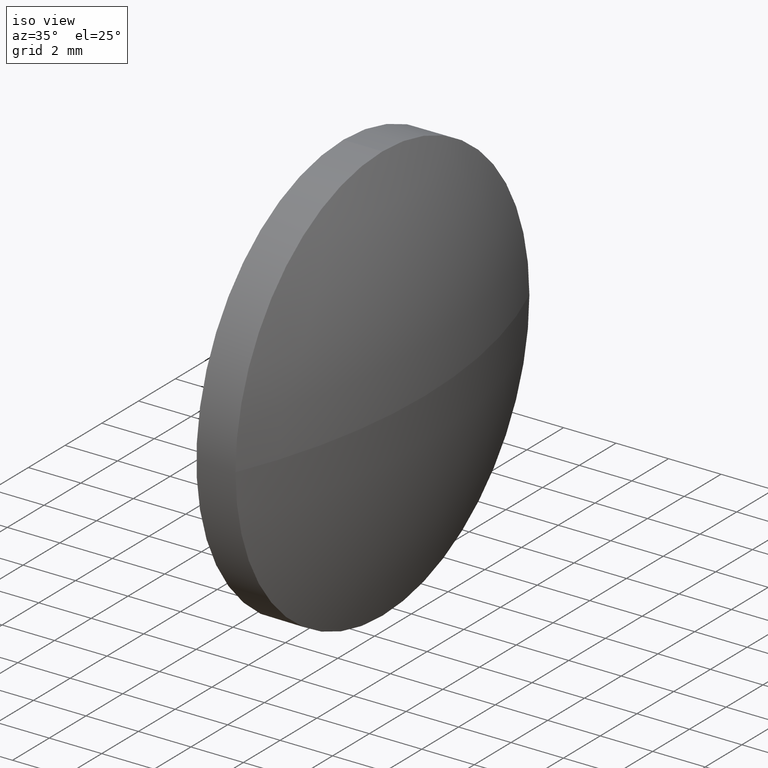
[diagram: clean part render]
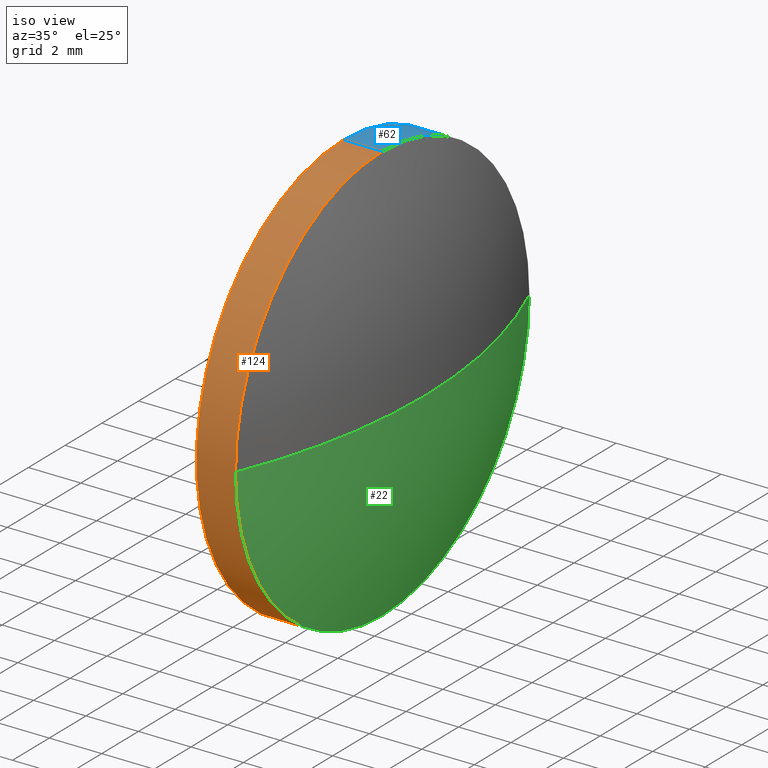
[diagram: same view with three faces highlighted in distinct colors, each labeled with its STEP entity id]
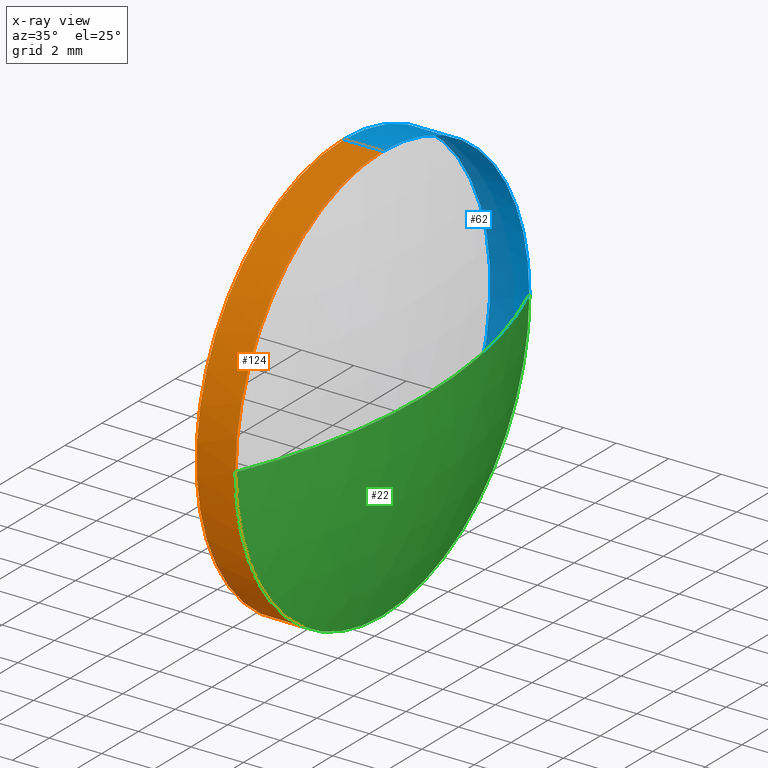
[diagram: x-ray of the same camera — body ghosted, the three highlighted faces saturated]
A machine part, iso view with three faces highlighted in distinct colors.
The next image is the same camera in x-ray (body ghosted, the three faces saturated) — at least one of them is partly hidden behind the body in this view.
Their STEP definitions:

[orange] entity #124 — the highlighted cylindrical surface (partial cylindrical patch) has radius 8 mm, axis along (-1, -0, -0).
#5 = AXIS2_PLACEMENT_3D ( 'NONE', #98, #152, #180 ) ;
#9 = EDGE_CURVE ( 'NONE', #159, #77, #82, .T. ) ;
#13 = VECTOR ( 'NONE', #148, 1000.000000000000000 ) ;
#16 = CARTESIAN_POINT ( 'NONE',  ( 440.2712780236154800, 0.7681557501930741400, 0.0000000000000000000 ) ) ;
#19 = FACE_OUTER_BOUND ( 'NONE', #173, .T. ) ;
#24 = VERTEX_POINT ( 'NONE', #126 ) ;
#25 = DIRECTION ( 'NONE',  ( -1.000000000000000000, -0.0000000000000000000, -0.0000000000000000000 ) ) ;
#37 = VERTEX_POINT ( 'NONE', #106 ) ;
#40 = CARTESIAN_POINT ( 'NONE',  ( 441.7612780236154900, -7.231844249806953500, -9.797174393178815800E-016 ) ) ;
#42 = DIRECTION ( 'NONE',  ( 0.0000000000000000000, 0.0000000000000000000, 1.000000000000000000 ) ) ;
#44 = EDGE_CURVE ( 'NONE', #37, #159, #185, .T. ) ;
#45 = EDGE_CURVE ( 'NONE', #37, #65, #51, .T. ) ;
#47 = ORIENTED_EDGE ( 'NONE', *, *, #44, .T. ) ;
#48 = AXIS2_PLACEMENT_3D ( 'NONE', #81, #80, #163 ) ;
#51 = LINE ( 'NONE', #123, #160 ) ;
#52 = ORIENTED_EDGE ( 'NONE', *, *, #102, .T. ) ;
#61 = ORIENTED_EDGE ( 'NONE', *, *, #67, .F. ) ;
#65 = VERTEX_POINT ( 'NONE', #149 ) ;
#67 = EDGE_CURVE ( 'NONE', #65, #24, #92, .T. ) ;
#68 = DIRECTION ( 'NONE',  ( -1.000000000000000000, -0.0000000000000000000, -0.0000000000000000000 ) ) ;
#70 = DIRECTION ( 'NONE',  ( 0.0000000000000000000, 0.0000000000000000000, 1.000000000000000000 ) ) ;
#73 = AXIS2_PLACEMENT_3D ( 'NONE', #16, #68, #70 ) ;
#77 = VERTEX_POINT ( 'NONE', #115 ) ;
#80 = DIRECTION ( 'NONE',  ( -1.000000000000000000, -0.0000000000000000000, -0.0000000000000000000 ) ) ;
#81 = CARTESIAN_POINT ( 'NONE',  ( 441.7612780236154900, 0.7681557501930741400, 0.0000000000000000000 ) ) ;
#82 = CIRCLE ( 'NONE', #111, 8.000000000000000000 ) ;
#92 = CIRCLE ( 'NONE', #73, 8.000000000000000000 ) ;
#98 = CARTESIAN_POINT ( 'NONE',  ( 438.6233055506239700, 0.7681557501930741400, 0.0000000000000000000 ) ) ;
#102 = EDGE_CURVE ( 'NONE', #77, #24, #176, .T. ) ;
#106 = CARTESIAN_POINT ( 'NONE',  ( 441.7612780236154900, 0.7681557501930751400, -8.000000000000000000 ) ) ;
#110 = CYLINDRICAL_SURFACE ( 'NONE', #5, 8.000000000000000000 ) ;
#111 = AXIS2_PLACEMENT_3D ( 'NONE', #125, #140, #42 ) ;
#115 = CARTESIAN_POINT ( 'NONE',  ( 441.7612780236154900, 0.7681557501930741400, 8.000000000000000000 ) ) ;
#123 = CARTESIAN_POINT ( 'NONE',  ( 438.6233055506239700, 0.7681557501930751400, -8.000000000000000000 ) ) ;
#124 = ADVANCED_FACE ( 'NONE', ( #19 ), #110, .T. ) ;
#125 = CARTESIAN_POINT ( 'NONE',  ( 441.7612780236154900, 0.7681557501930741400, 0.0000000000000000000 ) ) ;
#126 = CARTESIAN_POINT ( 'NONE',  ( 440.2712780236154800, 0.7681557501930741400, 8.000000000000000000 ) ) ;
#140 = DIRECTION ( 'NONE',  ( -1.000000000000000000, -0.0000000000000000000, -0.0000000000000000000 ) ) ;
#148 = DIRECTION ( 'NONE',  ( -1.000000000000000000, -0.0000000000000000000, -0.0000000000000000000 ) ) ;
#149 = CARTESIAN_POINT ( 'NONE',  ( 440.2712780236154800, 0.7681557501930751400, -8.000000000000000000 ) ) ;
#152 = DIRECTION ( 'NONE',  ( -1.000000000000000000, -0.0000000000000000000, -0.0000000000000000000 ) ) ;
#159 = VERTEX_POINT ( 'NONE', #40 ) ;
#160 = VECTOR ( 'NONE', #25, 1000.000000000000000 ) ;
#162 = CARTESIAN_POINT ( 'NONE',  ( 438.6233055506239700, 0.7681557501930741400, 8.000000000000000000 ) ) ;
#163 = DIRECTION ( 'NONE',  ( 0.0000000000000000000, 0.0000000000000000000, 1.000000000000000000 ) ) ;
#168 = ORIENTED_EDGE ( 'NONE', *, *, #45, .F. ) ;
#173 = EDGE_LOOP ( 'NONE', ( #168, #47, #175, #52, #61 ) ) ;
#175 = ORIENTED_EDGE ( 'NONE', *, *, #9, .T. ) ;
#176 = LINE ( 'NONE', #162, #13 ) ;
#180 = DIRECTION ( 'NONE',  ( 0.0000000000000000000, 0.0000000000000000000, 1.000000000000000000 ) ) ;
#185 = CIRCLE ( 'NONE', #48, 8.000000000000000000 ) ;

[blue] entity #62 — the highlighted cylindrical surface (partial cylindrical patch) has radius 8 mm, axis along (-1, -0, -0).
#1 = DIRECTION ( 'NONE',  ( 0.0000000000000000000, 0.0000000000000000000, 1.000000000000000000 ) ) ;
#2 = CYLINDRICAL_SURFACE ( 'NONE', #174, 8.000000000000000000 ) ;
#13 = VECTOR ( 'NONE', #148, 1000.000000000000000 ) ;
#14 = ORIENTED_EDGE ( 'NONE', *, *, #94, .F. ) ;
#24 = VERTEX_POINT ( 'NONE', #126 ) ;
#25 = DIRECTION ( 'NONE',  ( -1.000000000000000000, -0.0000000000000000000, -0.0000000000000000000 ) ) ;
#26 = AXIS2_PLACEMENT_3D ( 'NONE', #166, #151, #39 ) ;
#37 = VERTEX_POINT ( 'NONE', #106 ) ;
#39 = DIRECTION ( 'NONE',  ( 0.0000000000000000000, 0.0000000000000000000, 1.000000000000000000 ) ) ;
#45 = EDGE_CURVE ( 'NONE', #37, #65, #51, .T. ) ;
#50 = ORIENTED_EDGE ( 'NONE', *, *, #114, .T. ) ;
#51 = LINE ( 'NONE', #123, #160 ) ;
#58 = DIRECTION ( 'NONE',  ( 0.0000000000000000000, 0.0000000000000000000, 1.000000000000000000 ) ) ;
#59 = DIRECTION ( 'NONE',  ( -1.000000000000000000, -0.0000000000000000000, -0.0000000000000000000 ) ) ;
#62 = ADVANCED_FACE ( 'NONE', ( #146 ), #2, .T. ) ;
#65 = VERTEX_POINT ( 'NONE', #149 ) ;
#69 = CARTESIAN_POINT ( 'NONE',  ( 438.6233055506239700, 0.7681557501930741400, 0.0000000000000000000 ) ) ;
#77 = VERTEX_POINT ( 'NONE', #115 ) ;
#78 = AXIS2_PLACEMENT_3D ( 'NONE', #181, #59, #178 ) ;
#83 = CARTESIAN_POINT ( 'NONE',  ( 441.7612780236154900, 8.768155750193066900, 0.0000000000000000000 ) ) ;
#91 = AXIS2_PLACEMENT_3D ( 'NONE', #150, #138, #58 ) ;
#93 = ORIENTED_EDGE ( 'NONE', *, *, #129, .T. ) ;
#94 = EDGE_CURVE ( 'NONE', #24, #65, #103, .T. ) ;
#102 = EDGE_CURVE ( 'NONE', #77, #24, #176, .T. ) ;
#103 = CIRCLE ( 'NONE', #78, 8.000000000000000000 ) ;
#106 = CARTESIAN_POINT ( 'NONE',  ( 441.7612780236154900, 0.7681557501930751400, -8.000000000000000000 ) ) ;
#114 = EDGE_CURVE ( 'NONE', #77, #120, #179, .T. ) ;
#115 = CARTESIAN_POINT ( 'NONE',  ( 441.7612780236154900, 0.7681557501930741400, 8.000000000000000000 ) ) ;
#120 = VERTEX_POINT ( 'NONE', #83 ) ;
#123 = CARTESIAN_POINT ( 'NONE',  ( 438.6233055506239700, 0.7681557501930751400, -8.000000000000000000 ) ) ;
#126 = CARTESIAN_POINT ( 'NONE',  ( 440.2712780236154800, 0.7681557501930741400, 8.000000000000000000 ) ) ;
#128 = EDGE_LOOP ( 'NONE', ( #93, #147, #14, #161, #50 ) ) ;
#129 = EDGE_CURVE ( 'NONE', #120, #37, #167, .T. ) ;
#138 = DIRECTION ( 'NONE',  ( -1.000000000000000000, -0.0000000000000000000, -0.0000000000000000000 ) ) ;
#145 = DIRECTION ( 'NONE',  ( -1.000000000000000000, -0.0000000000000000000, -0.0000000000000000000 ) ) ;
#146 = FACE_OUTER_BOUND ( 'NONE', #128, .T. ) ;
#147 = ORIENTED_EDGE ( 'NONE', *, *, #45, .T. ) ;
#148 = DIRECTION ( 'NONE',  ( -1.000000000000000000, -0.0000000000000000000, -0.0000000000000000000 ) ) ;
#149 = CARTESIAN_POINT ( 'NONE',  ( 440.2712780236154800, 0.7681557501930751400, -8.000000000000000000 ) ) ;
#150 = CARTESIAN_POINT ( 'NONE',  ( 441.7612780236154900, 0.7681557501930741400, 0.0000000000000000000 ) ) ;
#151 = DIRECTION ( 'NONE',  ( -1.000000000000000000, -0.0000000000000000000, -0.0000000000000000000 ) ) ;
#160 = VECTOR ( 'NONE', #25, 1000.000000000000000 ) ;
#161 = ORIENTED_EDGE ( 'NONE', *, *, #102, .F. ) ;
#162 = CARTESIAN_POINT ( 'NONE',  ( 438.6233055506239700, 0.7681557501930741400, 8.000000000000000000 ) ) ;
#166 = CARTESIAN_POINT ( 'NONE',  ( 441.7612780236154900, 0.7681557501930741400, 0.0000000000000000000 ) ) ;
#167 = CIRCLE ( 'NONE', #91, 8.000000000000000000 ) ;
#174 = AXIS2_PLACEMENT_3D ( 'NONE', #69, #145, #1 ) ;
#176 = LINE ( 'NONE', #162, #13 ) ;
#178 = DIRECTION ( 'NONE',  ( 0.0000000000000000000, 0.0000000000000000000, 1.000000000000000000 ) ) ;
#179 = CIRCLE ( 'NONE', #26, 8.000000000000000000 ) ;
#181 = CARTESIAN_POINT ( 'NONE',  ( 440.2712780236154800, 0.7681557501930741400, 0.0000000000000000000 ) ) ;

[green] entity #22 — the highlighted spherical surface has radius 20.6808 mm.
#3 = SPHERICAL_SURFACE ( 'NONE', #64, 20.68077639751554000 ) ;
#7 = CARTESIAN_POINT ( 'NONE',  ( 422.6905016260999400, 0.7681557501930390600, 0.0000000000000000000 ) ) ;
#8 = ORIENTED_EDGE ( 'NONE', *, *, #129, .F. ) ;
#10 = CARTESIAN_POINT ( 'NONE',  ( 422.6905016260999400, 0.7681557501930390600, 0.0000000000000000000 ) ) ;
#20 = ORIENTED_EDGE ( 'NONE', *, *, #44, .F. ) ;
#22 = ADVANCED_FACE ( 'NONE', ( #105 ), #3, .T. ) ;
#34 = CIRCLE ( 'NONE', #99, 20.68077639751554000 ) ;
#37 = VERTEX_POINT ( 'NONE', #106 ) ;
#38 = AXIS2_PLACEMENT_3D ( 'NONE', #71, #177, #134 ) ;
#40 = CARTESIAN_POINT ( 'NONE',  ( 441.7612780236154900, -7.231844249806953500, -9.797174393178815800E-016 ) ) ;
#44 = EDGE_CURVE ( 'NONE', #37, #159, #185, .T. ) ;
#48 = AXIS2_PLACEMENT_3D ( 'NONE', #81, #80, #163 ) ;
#58 = DIRECTION ( 'NONE',  ( 0.0000000000000000000, 0.0000000000000000000, 1.000000000000000000 ) ) ;
#60 = CIRCLE ( 'NONE', #38, 20.68077639751553300 ) ;
#64 = AXIS2_PLACEMENT_3D ( 'NONE', #10, #170, #108 ) ;
#71 = CARTESIAN_POINT ( 'NONE',  ( 422.6905016260999400, 0.7681557501930390600, 0.0000000000000000000 ) ) ;
#80 = DIRECTION ( 'NONE',  ( -1.000000000000000000, -0.0000000000000000000, -0.0000000000000000000 ) ) ;
#81 = CARTESIAN_POINT ( 'NONE',  ( 441.7612780236154900, 0.7681557501930741400, 0.0000000000000000000 ) ) ;
#83 = CARTESIAN_POINT ( 'NONE',  ( 441.7612780236154900, 8.768155750193066900, 0.0000000000000000000 ) ) ;
#84 = DIRECTION ( 'NONE',  ( 0.0000000000000000000, 1.000000000000000000, 1.224646799147353200E-016 ) ) ;
#88 = EDGE_CURVE ( 'NONE', #182, #120, #60, .T. ) ;
#91 = AXIS2_PLACEMENT_3D ( 'NONE', #150, #138, #58 ) ;
#99 = AXIS2_PLACEMENT_3D ( 'NONE', #7, #135, #84 ) ;
#105 = FACE_OUTER_BOUND ( 'NONE', #153, .T. ) ;
#106 = CARTESIAN_POINT ( 'NONE',  ( 441.7612780236154900, 0.7681557501930751400, -8.000000000000000000 ) ) ;
#108 = DIRECTION ( 'NONE',  ( 0.0000000000000000000, 1.000000000000000000, 0.0000000000000000000 ) ) ;
#120 = VERTEX_POINT ( 'NONE', #83 ) ;
#129 = EDGE_CURVE ( 'NONE', #120, #37, #167, .T. ) ;
#134 = DIRECTION ( 'NONE',  ( 1.000000000000000000, 0.0000000000000000000, 0.0000000000000000000 ) ) ;
#135 = DIRECTION ( 'NONE',  ( 0.0000000000000000000, 1.224646799147353200E-016, -1.000000000000000000 ) ) ;
#136 = ORIENTED_EDGE ( 'NONE', *, *, #88, .F. ) ;
#138 = DIRECTION ( 'NONE',  ( -1.000000000000000000, -0.0000000000000000000, -0.0000000000000000000 ) ) ;
#139 = EDGE_CURVE ( 'NONE', #182, #159, #34, .T. ) ;
#150 = CARTESIAN_POINT ( 'NONE',  ( 441.7612780236154900, 0.7681557501930741400, 0.0000000000000000000 ) ) ;
#153 = EDGE_LOOP ( 'NONE', ( #136, #158, #20, #8 ) ) ;
#158 = ORIENTED_EDGE ( 'NONE', *, *, #139, .T. ) ;
#159 = VERTEX_POINT ( 'NONE', #40 ) ;
#163 = DIRECTION ( 'NONE',  ( 0.0000000000000000000, 0.0000000000000000000, 1.000000000000000000 ) ) ;
#164 = CARTESIAN_POINT ( 'NONE',  ( 443.3712780236155000, 0.7681557501930403900, 0.0000000000000000000 ) ) ;
#167 = CIRCLE ( 'NONE', #91, 8.000000000000000000 ) ;
#170 = DIRECTION ( 'NONE',  ( -0.0000000000000000000, 0.0000000000000000000, -1.000000000000000000 ) ) ;
#177 = DIRECTION ( 'NONE',  ( -0.0000000000000000000, 0.0000000000000000000, 1.000000000000000000 ) ) ;
#182 = VERTEX_POINT ( 'NONE', #164 ) ;
#185 = CIRCLE ( 'NONE', #48, 8.000000000000000000 ) ;